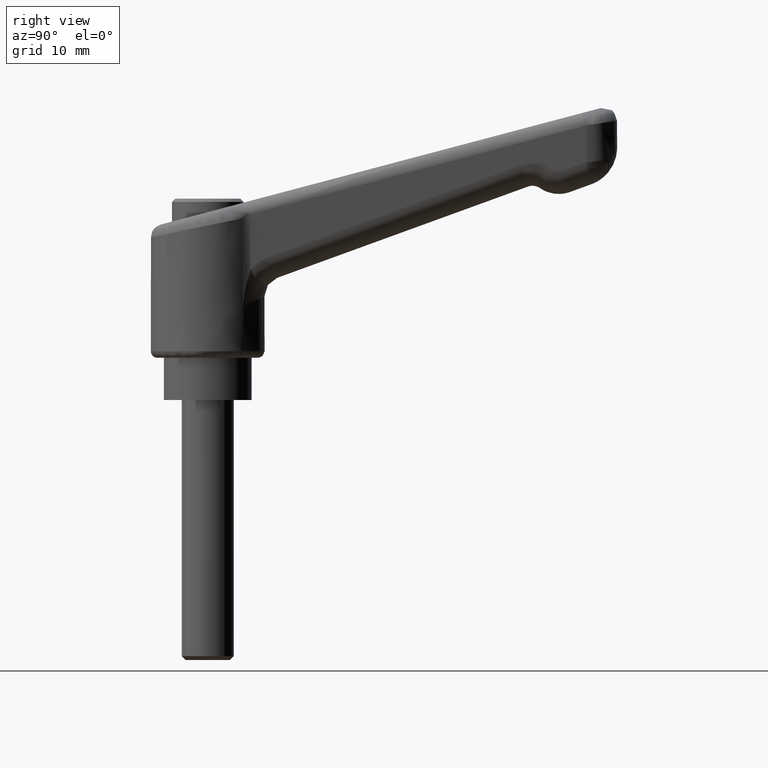
[diagram: clean part render]
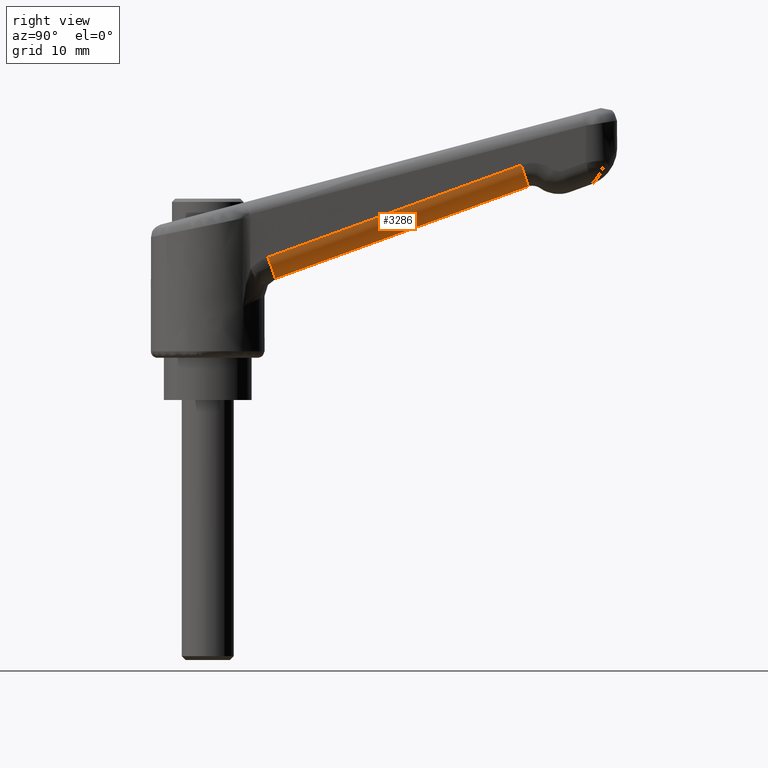
[diagram: same view with one face highlighted and labeled with its STEP entity id]
A machine part, right view. The second image highlights one B-rep face of the part: STEP entity #3286.
In plain terms, the highlighted face is a freeform B-spline surface patch.
Its self-contained STEP definition (entity closure, byte-faithful):
#3205=CARTESIAN_POINT('',(10.359522173690999,-2.903622422313825,18.684377667119900));
#3206=VERTEX_POINT('',#3205);
#3207=CARTESIAN_POINT('',(9.262958616653210,-6.402179053604970,21.973302108330000));
#3208=VERTEX_POINT('',#3207);
#3209=CARTESIAN_POINT('',(10.359522173690999,-2.903622422313825,18.684377667119900));
#3210=CARTESIAN_POINT('',(10.366765479024490,-3.188078069312483,18.686928728702661));
#3211=CARTESIAN_POINT('',(10.359411524866539,-3.628927084199729,18.741929482679250));
#3212=CARTESIAN_POINT('',(10.297447748790400,-4.361806037900505,18.970019321036052));
#3213=CARTESIAN_POINT('',(10.187317751679650,-5.010567470343527,19.323805516908081));
#3214=CARTESIAN_POINT('',(10.014535416540211,-5.576410399472726,19.843183015084520));
#3215=CARTESIAN_POINT('',(9.850970617257351,-5.926685629981253,20.320220910179160));
#3216=CARTESIAN_POINT('',(9.669423420921834,-6.196063174965880,20.840279869571781));
#3217=CARTESIAN_POINT('',(9.475899285425729,-6.361039894002419,21.385004934696710));
#3218=CARTESIAN_POINT('',(9.326168614174414,-6.400367192046978,21.799490937256941));
#3219=CARTESIAN_POINT('',(9.262958616653210,-6.402179053604970,21.973302108330000));
#3220=B_SPLINE_CURVE_WITH_KNOTS('',3,(#3209,#3210,#3211,#3212,#3213,#3214,#3215,#3216,#3217,#3218,#3219),.UNSPECIFIED.,.F.,.U.,(4,1,1,1,1,1,1,1,4),(0.000000098214345,0.853656598980886,1.323177530251779,2.304906411772626,3.073183590874527,3.670741350285634,4.140267773238441,4.908565767092992,5.463445318236347),.UNSPECIFIED.);
#3221=EDGE_CURVE('',#3206,#3208,#3220,.T.);
#3242=CARTESIAN_POINT('',(49.134182317882413,-5.254493388461734,36.619311090260041));
#3243=CARTESIAN_POINT('',(8.221981310972412,-6.429815264660343,21.728498096015791));
#3244=CARTESIAN_POINT('',(50.454264670706650,-5.355329693569928,33.000371045150310));
#3245=CARTESIAN_POINT('',(9.542063663796640,-6.530651569768533,18.109558050906074));
#3246=CARTESIAN_POINT('',(50.264743838132894,-1.512631392902157,33.217774018520473));
#3247=CARTESIAN_POINT('',(9.352542831222904,-2.687953269100766,18.326961024276219));
#3255=(BOUNDED_SURFACE()B_SPLINE_SURFACE(1,2,((#3242,#3244,#3246),(#3243,#3245,#3247)),.UNSPECIFIED.,.F.,.F.,.U.)B_SPLINE_SURFACE_WITH_KNOTS((2,2),(3,3),(0.0,43.553712635916952),(0.0,6.196964410223533),.UNSPECIFIED.)GEOMETRIC_REPRESENTATION_ITEM()RATIONAL_B_SPLINE_SURFACE(((1.0,0.671051941558032,0.996179643717244),(1.0,0.671051941558032,0.996179643717244)))REPRESENTATION_ITEM('')SURFACE());
#3256=CARTESIAN_POINT('',(49.300344071999113,-1.784934140387715,32.857667846055499));
#3257=VERTEX_POINT('',#3256);
#3258=CARTESIAN_POINT('',(48.203780514961302,-5.283490771678870,36.146592287265662));
#3259=VERTEX_POINT('',#3258);
#3260=CARTESIAN_POINT('',(49.300344071999113,-1.784934140387715,32.857667846055499));
#3261=CARTESIAN_POINT('',(49.310168435510718,-2.168983953665921,32.860988404332758));
#3262=CARTESIAN_POINT('',(49.291673450539577,-2.751898865875766,32.957812076190770));
#3263=CARTESIAN_POINT('',(49.188610626036933,-3.575065953597371,33.305947082676909));
#3264=CARTESIAN_POINT('',(49.057812325438952,-4.153053715688059,33.710932896999900));
#3265=CARTESIAN_POINT('',(48.864996856352477,-4.678422986979125,34.282156458092203));
#3266=CARTESIAN_POINT('',(48.651722316243941,-5.042058872474872,34.896825386465217));
#3267=CARTESIAN_POINT('',(48.416720008321917,-5.242348453354236,35.558298093736418));
#3268=CARTESIAN_POINT('',(48.266990546956343,-5.281678359162060,35.972780977989743));
#3269=CARTESIAN_POINT('',(48.203780514961302,-5.283490771678870,36.146592287265662));
#3270=B_SPLINE_CURVE_WITH_KNOTS('',3,(#3260,#3261,#3262,#3263,#3264,#3265,#3266,#3267,#3268,#3269),.UNSPECIFIED.,.F.,.U.,(4,1,1,1,1,1,1,4),(0.000000098219827,1.152440570891947,1.750014505679761,2.689069421208456,3.286602257529039,4.140267773237827,4.908565767092701,5.463445318236417),.UNSPECIFIED.);
#3271=EDGE_CURVE('',#3257,#3259,#3270,.T.);
#3272=ORIENTED_EDGE('',*,*,#3271,.T.);
#3273=CARTESIAN_POINT('',(9.262958616653210,-6.402179053604970,21.973302108330000));
#3274=CARTESIAN_POINT('',(48.203780514961302,-5.283490771678870,36.146592287265662));
#3275=QUASI_UNIFORM_CURVE('',1,(#3273,#3274),.UNSPECIFIED.,.F.,.U.);
#3276=EDGE_CURVE('',#3208,#3259,#3275,.T.);
#3277=ORIENTED_EDGE('',*,*,#3276,.F.);
#3278=ORIENTED_EDGE('',*,*,#3221,.F.);
#3279=CARTESIAN_POINT('',(49.300344071999113,-1.784934140387715,32.857667846055499));
#3280=CARTESIAN_POINT('',(10.359522173690999,-2.903622422313825,18.684377667119900));
#3281=QUASI_UNIFORM_CURVE('',1,(#3279,#3280),.UNSPECIFIED.,.F.,.U.);
#3282=EDGE_CURVE('',#3257,#3206,#3281,.T.);
#3283=ORIENTED_EDGE('',*,*,#3282,.F.);
#3284=EDGE_LOOP('',(#3272,#3277,#3278,#3283));
#3285=FACE_OUTER_BOUND('',#3284,.T.);
#3286=ADVANCED_FACE('',(#3285),#3255,.T.);